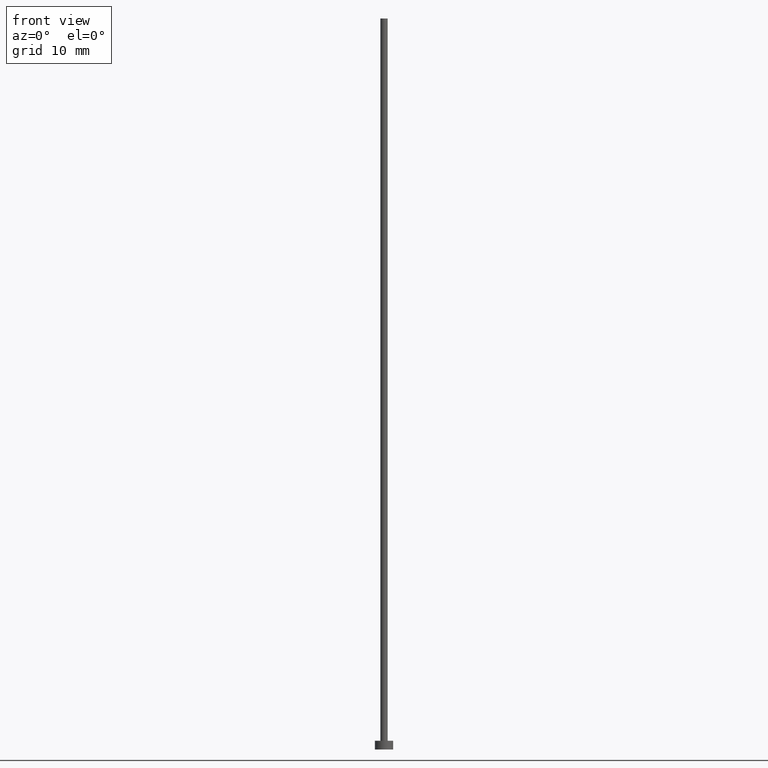
[diagram: clean part render]
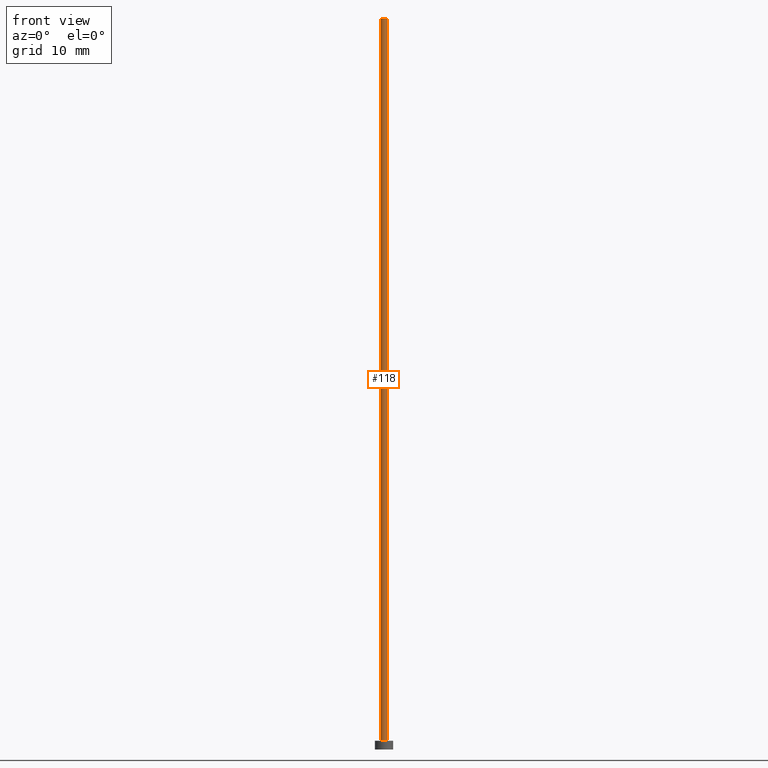
[diagram: same view with one face highlighted and labeled with its STEP entity id]
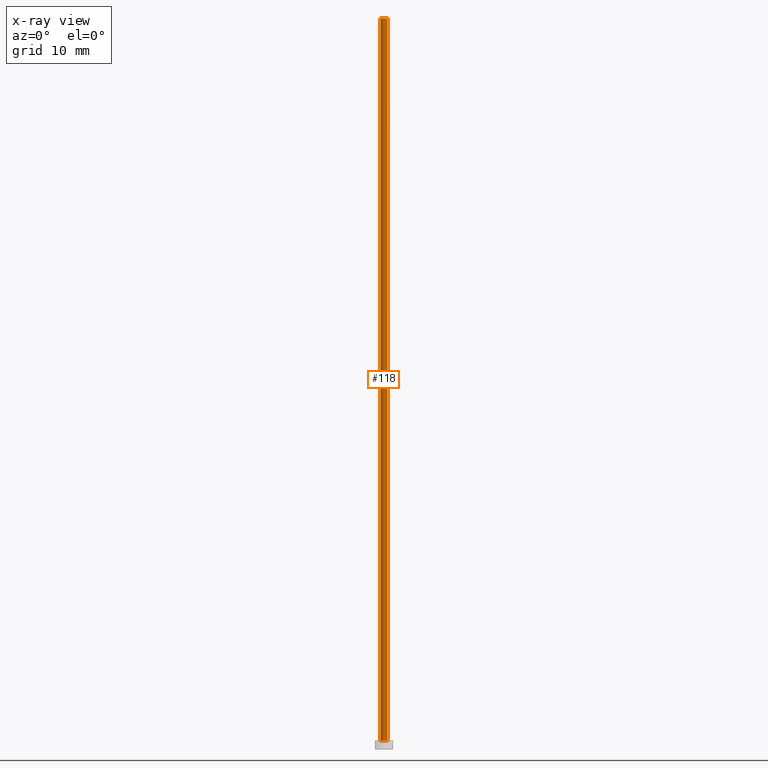
[diagram: x-ray of the same camera — body ghosted, the highlighted face saturated]
A machine part, front view. The second image highlights one B-rep face of the part: STEP entity #118.
The next image is the same camera in x-ray: the body ghosted, the highlighted face saturated — about 0% of this face is hidden behind the body in this view.
In plain terms, the highlighted cylindrical surface (edge-blend (fillet) strip) has radius 0.5 mm, axis along (-0, -0, -1).
Its self-contained STEP definition (entity closure, byte-faithful):
#2 = EDGE_CURVE ( 'NONE', #156, #240, #200, .T. ) ;
#3 = VERTEX_POINT ( 'NONE', #22 ) ;
#6 = ORIENTED_EDGE ( 'NONE', *, *, #155, .T. ) ;
#22 = CARTESIAN_POINT ( 'NONE',  ( -0.5000000000000000000, 0.000000000000000000, 100.0000000000000000 ) ) ;
#46 = EDGE_CURVE ( 'NONE', #3, #156, #157, .T. ) ;
#47 = EDGE_LOOP ( 'NONE', ( #82, #48, #6, #78 ) ) ;
#48 = ORIENTED_EDGE ( 'NONE', *, *, #46, .F. ) ;
#55 = DIRECTION ( 'NONE',  ( 0.000000000000000000, 0.000000000000000000, 1.000000000000000000 ) ) ;
#60 = AXIS2_PLACEMENT_3D ( 'NONE', #246, #223, #242 ) ;
#68 = FACE_OUTER_BOUND ( 'NONE', #47, .T. ) ;
#70 = DIRECTION ( 'NONE',  ( 1.000000000000000000, 0.000000000000000000, 0.000000000000000000 ) ) ;
#73 = CARTESIAN_POINT ( 'NONE',  ( 0.5000000000000000000, 6.123233995736766036E-17, 1.199999999999999956 ) ) ;
#75 = VECTOR ( 'NONE', #183, 1000.000000000000000 ) ;
#78 = ORIENTED_EDGE ( 'NONE', *, *, #84, .T. ) ;
#82 = ORIENTED_EDGE ( 'NONE', *, *, #2, .F. ) ;
#84 = EDGE_CURVE ( 'NONE', #215, #240, #188, .T. ) ;
#105 = CARTESIAN_POINT ( 'NONE',  ( -0.5000000000000000000, 0.000000000000000000, 100.0000000000000000 ) ) ;
#107 = AXIS2_PLACEMENT_3D ( 'NONE', #203, #55, #70 ) ;
#118 = ADVANCED_FACE ( 'NONE', ( #68 ), #125, .T. ) ;
#124 = CARTESIAN_POINT ( 'NONE',  ( 0.000000000000000000, 0.000000000000000000, 1.199999999999999956 ) ) ;
#125 = CYLINDRICAL_SURFACE ( 'NONE', #60, 0.5000000000000000000 ) ;
#135 = CARTESIAN_POINT ( 'NONE',  ( 0.5000000000000000000, 6.123233995736766036E-17, 100.0000000000000000 ) ) ;
#143 = CARTESIAN_POINT ( 'NONE',  ( -0.5000000000000000000, 0.000000000000000000, 1.199999999999999956 ) ) ;
#155 = EDGE_CURVE ( 'NONE', #3, #215, #224, .T. ) ;
#156 = VERTEX_POINT ( 'NONE', #184 ) ;
#157 = CIRCLE ( 'NONE', #107, 0.5000000000000000000 ) ;
#183 = DIRECTION ( 'NONE',  ( -0.000000000000000000, -0.000000000000000000, -1.000000000000000000 ) ) ;
#184 = CARTESIAN_POINT ( 'NONE',  ( 0.5000000000000000000, 6.123233995736766036E-17, 100.0000000000000000 ) ) ;
#188 = CIRCLE ( 'NONE', #249, 0.5000000000000000000 ) ;
#199 = VECTOR ( 'NONE', #254, 1000.000000000000000 ) ;
#200 = LINE ( 'NONE', #135, #199 ) ;
#203 = CARTESIAN_POINT ( 'NONE',  ( 0.000000000000000000, 0.000000000000000000, 100.0000000000000000 ) ) ;
#215 = VERTEX_POINT ( 'NONE', #143 ) ;
#221 = DIRECTION ( 'NONE',  ( 0.000000000000000000, 0.000000000000000000, 1.000000000000000000 ) ) ;
#222 = DIRECTION ( 'NONE',  ( 1.000000000000000000, 0.000000000000000000, 0.000000000000000000 ) ) ;
#223 = DIRECTION ( 'NONE',  ( -0.000000000000000000, -0.000000000000000000, -1.000000000000000000 ) ) ;
#224 = LINE ( 'NONE', #105, #75 ) ;
#240 = VERTEX_POINT ( 'NONE', #73 ) ;
#242 = DIRECTION ( 'NONE',  ( -1.000000000000000000, 0.000000000000000000, 0.000000000000000000 ) ) ;
#246 = CARTESIAN_POINT ( 'NONE',  ( 0.000000000000000000, 0.000000000000000000, 100.0000000000000000 ) ) ;
#249 = AXIS2_PLACEMENT_3D ( 'NONE', #124, #221, #222 ) ;
#254 = DIRECTION ( 'NONE',  ( -0.000000000000000000, -0.000000000000000000, -1.000000000000000000 ) ) ;